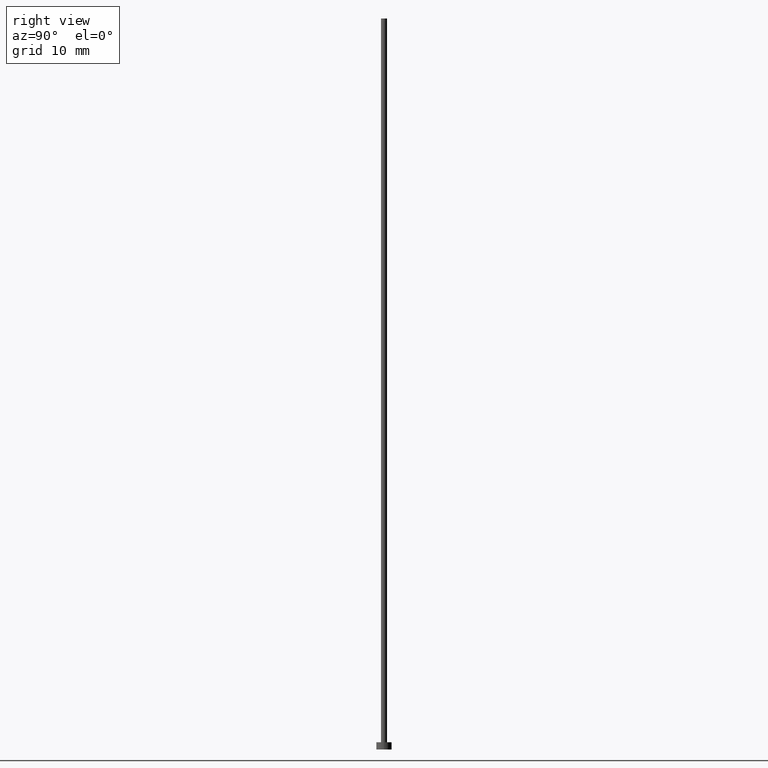
[diagram: clean part render]
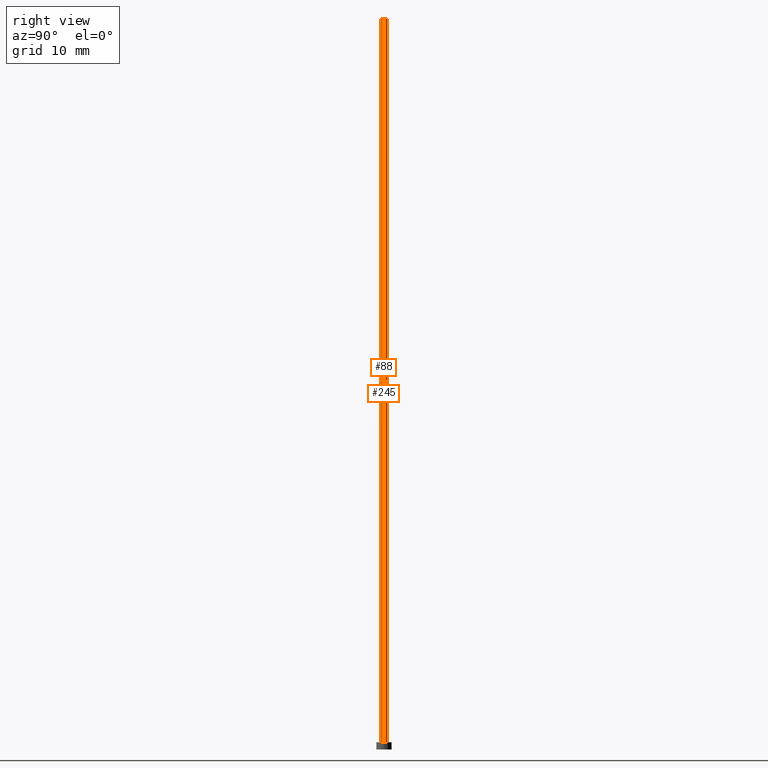
[diagram: same view with one multi-face feature highlighted, each face labeled with its STEP entity id]
A machine part, right view. The highlighted faces form ONE feature: a constant-radius fillet chain: 2 tangent blend faces with common blend radius 0.5 mm. The faces share edges in the B-rep.
Their STEP definitions:
[1] entity #245 (Cylinder):
#11 = VECTOR ( 'NONE', #116, 1000.000000000000000 ) ;
#12 = VERTEX_POINT ( 'NONE', #192 ) ;
#21 = CARTESIAN_POINT ( 'NONE',  ( 0.000000000000000000, 0.000000000000000000, 119.6700000000000017 ) ) ;
#22 = DIRECTION ( 'NONE',  ( 0.000000000000000000, 0.000000000000000000, 1.000000000000000000 ) ) ;
#38 = AXIS2_PLACEMENT_3D ( 'NONE', #68, #22, #66 ) ;
#40 = VERTEX_POINT ( 'NONE', #231 ) ;
#42 = CYLINDRICAL_SURFACE ( 'NONE', #194, 0.5000000000000000000 ) ;
#46 = VERTEX_POINT ( 'NONE', #227 ) ;
#47 = DIRECTION ( 'NONE',  ( 1.000000000000000000, 0.000000000000000000, 0.000000000000000000 ) ) ;
#51 = EDGE_CURVE ( 'NONE', #46, #40, #211, .T. ) ;
#60 = ORIENTED_EDGE ( 'NONE', *, *, #215, .T. ) ;
#66 = DIRECTION ( 'NONE',  ( 1.000000000000000000, 0.000000000000000000, 0.000000000000000000 ) ) ;
#68 = CARTESIAN_POINT ( 'NONE',  ( 0.000000000000000000, 0.000000000000000000, 119.6700000000000017 ) ) ;
#79 = CARTESIAN_POINT ( 'NONE',  ( -0.5000000000000000000, 0.000000000000000000, 119.6700000000000017 ) ) ;
#80 = ORIENTED_EDGE ( 'NONE', *, *, #51, .F. ) ;
#90 = ORIENTED_EDGE ( 'NONE', *, *, #200, .F. ) ;
#94 = LINE ( 'NONE', #219, #199 ) ;
#107 = DIRECTION ( 'NONE',  ( -1.000000000000000000, 0.000000000000000000, 0.000000000000000000 ) ) ;
#108 = ORIENTED_EDGE ( 'NONE', *, *, #157, .T. ) ;
#116 = DIRECTION ( 'NONE',  ( -0.000000000000000000, -0.000000000000000000, -1.000000000000000000 ) ) ;
#129 = CIRCLE ( 'NONE', #154, 0.5000000000000000000 ) ;
#146 = DIRECTION ( 'NONE',  ( 0.000000000000000000, 0.000000000000000000, 1.000000000000000000 ) ) ;
#154 = AXIS2_PLACEMENT_3D ( 'NONE', #183, #146, #47 ) ;
#155 = EDGE_LOOP ( 'NONE', ( #90, #108, #60, #80 ) ) ;
#157 = EDGE_CURVE ( 'NONE', #248, #12, #94, .T. ) ;
#162 = DIRECTION ( 'NONE',  ( -0.000000000000000000, -0.000000000000000000, -1.000000000000000000 ) ) ;
#183 = CARTESIAN_POINT ( 'NONE',  ( 0.000000000000000000, 0.000000000000000000, 1.199999999999999956 ) ) ;
#187 = DIRECTION ( 'NONE',  ( -0.000000000000000000, -0.000000000000000000, -1.000000000000000000 ) ) ;
#192 = CARTESIAN_POINT ( 'NONE',  ( 0.5000000000000000000, 6.123233995736766036E-17, 1.199999999999999956 ) ) ;
#194 = AXIS2_PLACEMENT_3D ( 'NONE', #21, #187, #107 ) ;
#199 = VECTOR ( 'NONE', #162, 1000.000000000000000 ) ;
#200 = EDGE_CURVE ( 'NONE', #248, #46, #208, .T. ) ;
#208 = CIRCLE ( 'NONE', #38, 0.5000000000000000000 ) ;
#211 = LINE ( 'NONE', #79, #11 ) ;
#215 = EDGE_CURVE ( 'NONE', #12, #40, #129, .T. ) ;
#219 = CARTESIAN_POINT ( 'NONE',  ( 0.5000000000000000000, 6.123233995736766036E-17, 119.6700000000000017 ) ) ;
#227 = CARTESIAN_POINT ( 'NONE',  ( -0.5000000000000000000, 0.000000000000000000, 119.6700000000000017 ) ) ;
#231 = CARTESIAN_POINT ( 'NONE',  ( -0.5000000000000000000, 0.000000000000000000, 1.199999999999999956 ) ) ;
#236 = FACE_OUTER_BOUND ( 'NONE', #155, .T. ) ;
#239 = CARTESIAN_POINT ( 'NONE',  ( 0.5000000000000000000, 6.123233995736766036E-17, 119.6700000000000017 ) ) ;
#245 = ADVANCED_FACE ( 'NONE', ( #236 ), #42, .T. ) ;
#248 = VERTEX_POINT ( 'NONE', #239 ) ;
[2] entity #88 (Cylinder):
#11 = VECTOR ( 'NONE', #116, 1000.000000000000000 ) ;
#12 = VERTEX_POINT ( 'NONE', #192 ) ;
#17 = DIRECTION ( 'NONE',  ( 1.000000000000000000, 0.000000000000000000, 0.000000000000000000 ) ) ;
#19 = FACE_OUTER_BOUND ( 'NONE', #123, .T. ) ;
#24 = AXIS2_PLACEMENT_3D ( 'NONE', #118, #250, #17 ) ;
#30 = AXIS2_PLACEMENT_3D ( 'NONE', #142, #251, #164 ) ;
#40 = VERTEX_POINT ( 'NONE', #231 ) ;
#46 = VERTEX_POINT ( 'NONE', #227 ) ;
#51 = EDGE_CURVE ( 'NONE', #46, #40, #211, .T. ) ;
#63 = CIRCLE ( 'NONE', #24, 0.5000000000000000000 ) ;
#67 = EDGE_CURVE ( 'NONE', #40, #12, #63, .T. ) ;
#79 = CARTESIAN_POINT ( 'NONE',  ( -0.5000000000000000000, 0.000000000000000000, 119.6700000000000017 ) ) ;
#88 = ADVANCED_FACE ( 'NONE', ( #19 ), #128, .T. ) ;
#89 = DIRECTION ( 'NONE',  ( 0.000000000000000000, 0.000000000000000000, 1.000000000000000000 ) ) ;
#94 = LINE ( 'NONE', #219, #199 ) ;
#102 = ORIENTED_EDGE ( 'NONE', *, *, #51, .T. ) ;
#116 = DIRECTION ( 'NONE',  ( -0.000000000000000000, -0.000000000000000000, -1.000000000000000000 ) ) ;
#118 = CARTESIAN_POINT ( 'NONE',  ( 0.000000000000000000, 0.000000000000000000, 1.199999999999999956 ) ) ;
#119 = EDGE_CURVE ( 'NONE', #46, #248, #173, .T. ) ;
#123 = EDGE_LOOP ( 'NONE', ( #243, #151, #102, #253 ) ) ;
#125 = CARTESIAN_POINT ( 'NONE',  ( 0.000000000000000000, 0.000000000000000000, 119.6700000000000017 ) ) ;
#127 = DIRECTION ( 'NONE',  ( 1.000000000000000000, 0.000000000000000000, 0.000000000000000000 ) ) ;
#128 = CYLINDRICAL_SURFACE ( 'NONE', #30, 0.5000000000000000000 ) ;
#142 = CARTESIAN_POINT ( 'NONE',  ( 0.000000000000000000, 0.000000000000000000, 119.6700000000000017 ) ) ;
#151 = ORIENTED_EDGE ( 'NONE', *, *, #119, .F. ) ;
#157 = EDGE_CURVE ( 'NONE', #248, #12, #94, .T. ) ;
#162 = DIRECTION ( 'NONE',  ( -0.000000000000000000, -0.000000000000000000, -1.000000000000000000 ) ) ;
#164 = DIRECTION ( 'NONE',  ( -1.000000000000000000, 0.000000000000000000, 0.000000000000000000 ) ) ;
#173 = CIRCLE ( 'NONE', #177, 0.5000000000000000000 ) ;
#177 = AXIS2_PLACEMENT_3D ( 'NONE', #125, #89, #127 ) ;
#192 = CARTESIAN_POINT ( 'NONE',  ( 0.5000000000000000000, 6.123233995736766036E-17, 1.199999999999999956 ) ) ;
#199 = VECTOR ( 'NONE', #162, 1000.000000000000000 ) ;
#211 = LINE ( 'NONE', #79, #11 ) ;
#219 = CARTESIAN_POINT ( 'NONE',  ( 0.5000000000000000000, 6.123233995736766036E-17, 119.6700000000000017 ) ) ;
#227 = CARTESIAN_POINT ( 'NONE',  ( -0.5000000000000000000, 0.000000000000000000, 119.6700000000000017 ) ) ;
#231 = CARTESIAN_POINT ( 'NONE',  ( -0.5000000000000000000, 0.000000000000000000, 1.199999999999999956 ) ) ;
#239 = CARTESIAN_POINT ( 'NONE',  ( 0.5000000000000000000, 6.123233995736766036E-17, 119.6700000000000017 ) ) ;
#243 = ORIENTED_EDGE ( 'NONE', *, *, #157, .F. ) ;
#248 = VERTEX_POINT ( 'NONE', #239 ) ;
#250 = DIRECTION ( 'NONE',  ( 0.000000000000000000, 0.000000000000000000, 1.000000000000000000 ) ) ;
#251 = DIRECTION ( 'NONE',  ( -0.000000000000000000, -0.000000000000000000, -1.000000000000000000 ) ) ;
#253 = ORIENTED_EDGE ( 'NONE', *, *, #67, .T. ) ;